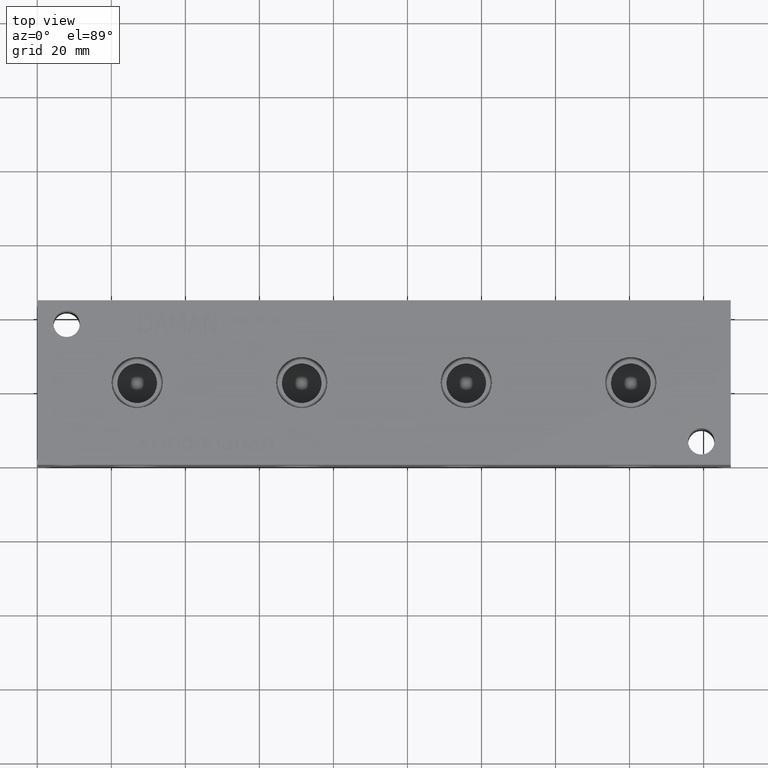
[diagram: clean part render]
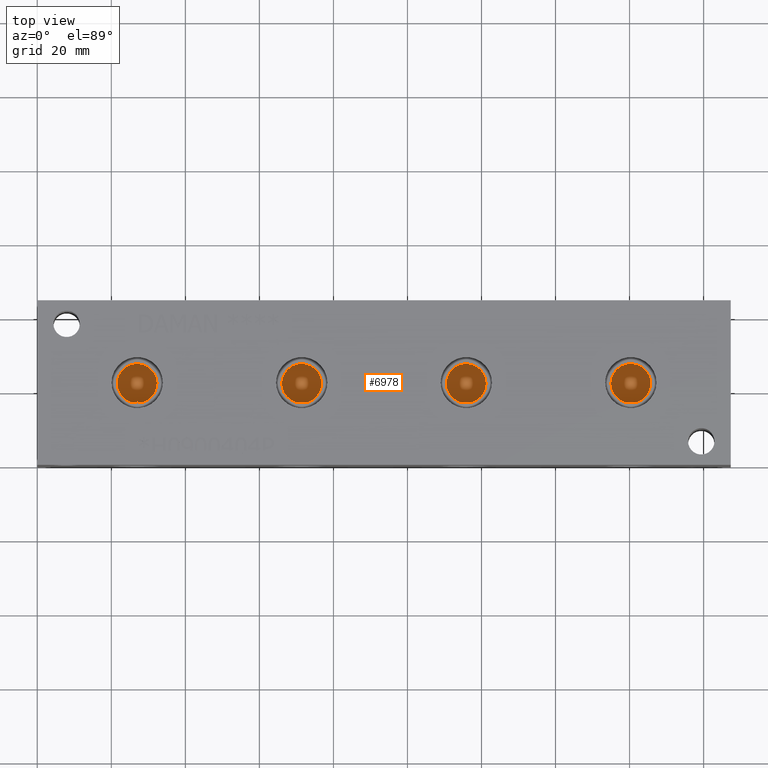
[diagram: same view with one face highlighted and labeled with its STEP entity id]
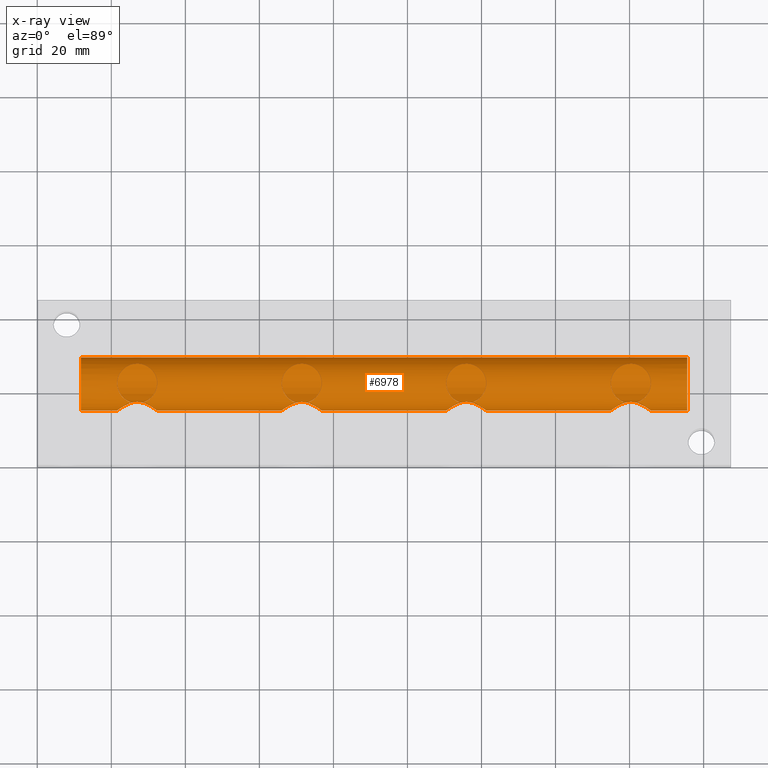
[diagram: x-ray of the same camera — body ghosted, the highlighted face saturated]
A machine part, top view. The second image highlights one B-rep face of the part: STEP entity #6978.
The next image is the same camera in x-ray: the body ghosted, the highlighted face saturated — about 1% of this face is hidden behind the body in this view.
In plain terms, the highlighted cylindrical surface (bore or boss wall) has radius 7.1501 mm, axis along (-1, 0, 0).
Its self-contained STEP definition (entity closure, byte-faithful):
#34=CYLINDRICAL_SURFACE('',#7292,7.1501);
#85=CIRCLE('',#7293,7.1501);
#86=CIRCLE('',#7294,7.1501);
#726=FACE_OUTER_BOUND('',#1113,.T.);
#1113=EDGE_LOOP('',(#6080,#6081,#6082,#6083,#6084,#6085,#6086,#6087,#6088,
#6089,#6090,#6091,#6092,#6093,#6094,#6095,#6096,#6097,#6098,#6099,#6100,
#6101,#6102,#6103,#6104,#6105,#6106,#6107,#6108,#6109,#6110,#6111,#6112,
#6113,#6114,#6115));
#1830=LINE('',#11775,#2529);
#1831=LINE('',#11776,#2530);
#1832=LINE('',#11777,#2531);
#1833=LINE('',#11778,#2532);
#1834=LINE('',#11780,#2533);
#2529=VECTOR('',#8573,7.1501);
#2530=VECTOR('',#8574,7.1501);
#2531=VECTOR('',#8575,7.1501);
#2532=VECTOR('',#8576,7.1501);
#2533=VECTOR('',#8577,7.1501);
#2726=B_SPLINE_CURVE_WITH_KNOTS('',3,(#11541,#11542,#11543,#11544,#11545,
#11546,#11547,#11548,#11549,#11550),.UNSPECIFIED.,.F.,.F.,(4,2,2,2,4),(0.181678559742677,
0.215897214384859,0.431794428769718,0.643166291581829,0.85453815439394),
 .UNSPECIFIED.);
#2727=B_SPLINE_CURVE_WITH_KNOTS('',3,(#11554,#11555,#11556,#11557,#11558,
#11559,#11560,#11561,#11562,#11563),.UNSPECIFIED.,.F.,.F.,(4,2,2,2,4),(2.56361446318182,
2.77498632599393,2.98635818880604,3.2022554031909,3.23647405783307),
 .UNSPECIFIED.);
#2728=B_SPLINE_CURVE_WITH_KNOTS('',3,(#11564,#11565,#11566,#11567,#11568,
#11569,#11570,#11571,#11572,#11573,#11574,#11575,#11576,#11577,#11578,#11579,
#11580,#11581,#11582,#11583,#11584,#11585),.UNSPECIFIED.,.F.,.F.,(4,2,2,
2,2,2,2,2,2,2,4),(0.85453815439394,1.06591001720605,1.27728188001816,1.49317909440302,
1.60112770159545,1.70907630878788,1.81702491598031,1.92497352317274,2.1408707375576,
2.35224260036971,2.56361446318182),.UNSPECIFIED.);
#2729=B_SPLINE_CURVE_WITH_KNOTS('',3,(#11603,#11604,#11605,#11606,#11607,
#11608,#11609,#11610,#11611,#11612),.UNSPECIFIED.,.F.,.F.,(4,2,2,2,4),(0.181678559742681,
0.215897214384859,0.431794428769717,0.643166291581829,0.85453815439394),
 .UNSPECIFIED.);
#2730=B_SPLINE_CURVE_WITH_KNOTS('',3,(#11616,#11617,#11618,#11619,#11620,
#11621,#11622,#11623,#11624,#11625),.UNSPECIFIED.,.F.,.F.,(4,2,2,2,4),(2.56361446318182,
2.77498632599393,2.98635818880604,3.2022554031909,3.23647405783308),
 .UNSPECIFIED.);
#2731=B_SPLINE_CURVE_WITH_KNOTS('',3,(#11626,#11627,#11628,#11629,#11630,
#11631,#11632,#11633,#11634,#11635,#11636,#11637,#11638,#11639,#11640,#11641,
#11642,#11643,#11644,#11645,#11646,#11647),.UNSPECIFIED.,.F.,.F.,(4,2,2,
2,2,2,2,2,2,2,4),(0.85453815439394,1.06591001720605,1.27728188001816,1.49317909440302,
1.60112770159545,1.70907630878788,1.81702491598031,1.92497352317274,2.1408707375576,
2.35224260036971,2.56361446318182),.UNSPECIFIED.);
#2732=B_SPLINE_CURVE_WITH_KNOTS('',3,(#11665,#11666,#11667,#11668,#11669,
#11670,#11671,#11672,#11673,#11674),.UNSPECIFIED.,.F.,.F.,(4,2,2,2,4),(0.181678559742683,
0.215897214384859,0.431794428769717,0.643166291581829,0.85453815439394),
 .UNSPECIFIED.);
#2733=B_SPLINE_CURVE_WITH_KNOTS('',3,(#11678,#11679,#11680,#11681,#11682,
#11683,#11684,#11685,#11686,#11687),.UNSPECIFIED.,.F.,.F.,(4,2,2,2,4),(2.56361446318182,
2.77498632599393,2.98635818880604,3.2022554031909,3.23647405783308),
 .UNSPECIFIED.);
#2734=B_SPLINE_CURVE_WITH_KNOTS('',3,(#11688,#11689,#11690,#11691,#11692,
#11693,#11694,#11695,#11696,#11697,#11698,#11699,#11700,#11701,#11702,#11703,
#11704,#11705,#11706,#11707,#11708,#11709),.UNSPECIFIED.,.F.,.F.,(4,2,2,
2,2,2,2,2,2,2,4),(0.85453815439394,1.06591001720605,1.27728188001816,1.49317909440302,
1.60112770159545,1.70907630878788,1.81702491598031,1.92497352317274,2.1408707375576,
2.35224260036971,2.56361446318182),.UNSPECIFIED.);
#2735=B_SPLINE_CURVE_WITH_KNOTS('',3,(#11727,#11728,#11729,#11730,#11731,
#11732,#11733,#11734,#11735,#11736),.UNSPECIFIED.,.F.,.F.,(4,2,2,2,4),(0.181678559742687,
0.215897214384858,0.431794428769717,0.643166291581828,0.854538154393939),
 .UNSPECIFIED.);
#2736=B_SPLINE_CURVE_WITH_KNOTS('',3,(#11740,#11741,#11742,#11743,#11744,
#11745,#11746,#11747,#11748,#11749),.UNSPECIFIED.,.F.,.F.,(4,2,2,2,4),(2.56361446318182,
2.77498632599393,2.98635818880604,3.2022554031909,3.23647405783308),
 .UNSPECIFIED.);
#2737=B_SPLINE_CURVE_WITH_KNOTS('',3,(#11750,#11751,#11752,#11753,#11754,
#11755,#11756,#11757,#11758,#11759,#11760,#11761,#11762,#11763,#11764,#11765,
#11766,#11767,#11768,#11769,#11770,#11771),.UNSPECIFIED.,.F.,.F.,(4,2,2,
2,2,2,2,2,2,2,4),(0.854538154393939,1.06591001720605,1.27728188001816,1.49317909440302,
1.60112770159545,1.70907630878788,1.81702491598031,1.92497352317274,2.1408707375576,
2.35224260036971,2.56361446318182),.UNSPECIFIED.);
#2738=B_SPLINE_CURVE_WITH_KNOTS('',3,(#11783,#11784,#11785,#11786,#11787,
#11788,#11789,#11790,#11791,#11792,#11793,#11794,#11795,#11796,#11797,#11798,
#11799,#11800,#11801,#11802),.UNSPECIFIED.,.F.,.F.,(4,2,2,2,2,2,2,2,2,4),
(1.89075486854655,1.92497352317274,2.1408707375576,2.35224260036971,2.56361446318182,
2.77498632599393,2.98635818880604,3.2022554031909,3.31020401038333,3.41815261757576),
 .UNSPECIFIED.);
#2739=B_SPLINE_CURVE_WITH_KNOTS('',3,(#11804,#11805,#11806,#11807,#11808,
#11809,#11810,#11811,#11812,#11813,#11814,#11815),.UNSPECIFIED.,.F.,.F.,
(4,2,2,2,2,4),(0.,0.107948607192429,0.215897214384858,0.431794428769717,
0.643166291581828,0.854538154393939),.UNSPECIFIED.);
#2740=B_SPLINE_CURVE_WITH_KNOTS('',3,(#11816,#11817,#11818,#11819,#11820,
#11821,#11822,#11823,#11824,#11825),.UNSPECIFIED.,.F.,.F.,(4,2,2,2,4),(0.854538154393939,
1.06591001720605,1.27728188001816,1.49317909440302,1.5273977490292),
 .UNSPECIFIED.);
#2741=B_SPLINE_CURVE_WITH_KNOTS('',3,(#11827,#11828,#11829,#11830,#11831,
#11832,#11833,#11834,#11835,#11836,#11837,#11838,#11839,#11840,#11841,#11842,
#11843,#11844,#11845,#11846),.UNSPECIFIED.,.F.,.F.,(4,2,2,2,2,2,2,2,2,4),
(1.89075486854656,1.92497352317274,2.1408707375576,2.35224260036971,2.56361446318182,
2.77498632599393,2.98635818880604,3.2022554031909,3.31020401038333,3.41815261757576),
 .UNSPECIFIED.);
#2742=B_SPLINE_CURVE_WITH_KNOTS('',3,(#11848,#11849,#11850,#11851,#11852,
#11853,#11854,#11855,#11856,#11857,#11858,#11859),.UNSPECIFIED.,.F.,.F.,
(4,2,2,2,2,4),(0.,0.10794860719243,0.215897214384859,0.431794428769718,
0.643166291581829,0.85453815439394),.UNSPECIFIED.);
#2743=B_SPLINE_CURVE_WITH_KNOTS('',3,(#11860,#11861,#11862,#11863,#11864,
#11865,#11866,#11867,#11868,#11869),.UNSPECIFIED.,.F.,.F.,(4,2,2,2,4),(0.85453815439394,
1.06591001720605,1.27728188001816,1.49317909440302,1.52739774902921),
 .UNSPECIFIED.);
#2744=B_SPLINE_CURVE_WITH_KNOTS('',3,(#11871,#11872,#11873,#11874,#11875,
#11876,#11877,#11878,#11879,#11880,#11881,#11882,#11883,#11884,#11885,#11886,
#11887,#11888,#11889,#11890),.UNSPECIFIED.,.F.,.F.,(4,2,2,2,2,2,2,2,2,4),
(1.89075486854656,1.92497352317274,2.1408707375576,2.35224260036971,2.56361446318182,
2.77498632599393,2.98635818880604,3.2022554031909,3.31020401038333,3.41815261757576),
 .UNSPECIFIED.);
#2745=B_SPLINE_CURVE_WITH_KNOTS('',3,(#11892,#11893,#11894,#11895,#11896,
#11897,#11898,#11899,#11900,#11901,#11902,#11903),.UNSPECIFIED.,.F.,.F.,
(4,2,2,2,2,4),(0.,0.107948607192429,0.215897214384859,0.431794428769717,
0.643166291581829,0.85453815439394),.UNSPECIFIED.);
#2746=B_SPLINE_CURVE_WITH_KNOTS('',3,(#11904,#11905,#11906,#11907,#11908,
#11909,#11910,#11911,#11912,#11913),.UNSPECIFIED.,.F.,.F.,(4,2,2,2,4),(0.85453815439394,
1.06591001720605,1.27728188001816,1.49317909440302,1.5273977490292),
 .UNSPECIFIED.);
#2747=B_SPLINE_CURVE_WITH_KNOTS('',3,(#11915,#11916,#11917,#11918,#11919,
#11920,#11921,#11922,#11923,#11924,#11925,#11926,#11927,#11928,#11929,#11930,
#11931,#11932,#11933,#11934),.UNSPECIFIED.,.F.,.F.,(4,2,2,2,2,2,2,2,2,4),
(1.89075486854656,1.92497352317274,2.1408707375576,2.35224260036971,2.56361446318182,
2.77498632599393,2.98635818880604,3.2022554031909,3.31020401038333,3.41815261757576),
 .UNSPECIFIED.);
#2748=B_SPLINE_CURVE_WITH_KNOTS('',3,(#11936,#11937,#11938,#11939,#11940,
#11941,#11942,#11943,#11944,#11945,#11946,#11947),.UNSPECIFIED.,.F.,.F.,
(4,2,2,2,2,4),(0.,0.107948607192429,0.215897214384859,0.431794428769717,
0.643166291581829,0.85453815439394),.UNSPECIFIED.);
#2749=B_SPLINE_CURVE_WITH_KNOTS('',3,(#11948,#11949,#11950,#11951,#11952,
#11953,#11954,#11955,#11956,#11957),.UNSPECIFIED.,.F.,.F.,(4,2,2,2,4),(0.85453815439394,
1.06591001720605,1.27728188001816,1.49317909440302,1.5273977490292),
 .UNSPECIFIED.);
#3319=VERTEX_POINT('',#11538);
#3320=VERTEX_POINT('',#11540);
#3321=VERTEX_POINT('',#11551);
#3322=VERTEX_POINT('',#11553);
#3328=VERTEX_POINT('',#11600);
#3329=VERTEX_POINT('',#11602);
#3330=VERTEX_POINT('',#11613);
#3331=VERTEX_POINT('',#11615);
#3337=VERTEX_POINT('',#11662);
#3338=VERTEX_POINT('',#11664);
#3339=VERTEX_POINT('',#11675);
#3340=VERTEX_POINT('',#11677);
#3346=VERTEX_POINT('',#11724);
#3347=VERTEX_POINT('',#11726);
#3348=VERTEX_POINT('',#11737);
#3349=VERTEX_POINT('',#11739);
#3350=VERTEX_POINT('',#11773);
#3351=VERTEX_POINT('',#11779);
#3352=VERTEX_POINT('',#11782);
#3353=VERTEX_POINT('',#11803);
#3354=VERTEX_POINT('',#11826);
#3355=VERTEX_POINT('',#11847);
#3356=VERTEX_POINT('',#11870);
#3357=VERTEX_POINT('',#11891);
#3358=VERTEX_POINT('',#11914);
#3359=VERTEX_POINT('',#11935);
#4241=EDGE_CURVE('',#3320,#3319,#2726,.T.);
#4243=EDGE_CURVE('',#3322,#3321,#2727,.T.);
#4244=EDGE_CURVE('',#3319,#3322,#2728,.T.);
#4252=EDGE_CURVE('',#3329,#3328,#2729,.T.);
#4254=EDGE_CURVE('',#3331,#3330,#2730,.T.);
#4255=EDGE_CURVE('',#3328,#3331,#2731,.T.);
#4263=EDGE_CURVE('',#3338,#3337,#2732,.T.);
#4265=EDGE_CURVE('',#3340,#3339,#2733,.T.);
#4266=EDGE_CURVE('',#3337,#3340,#2734,.T.);
#4274=EDGE_CURVE('',#3347,#3346,#2735,.T.);
#4276=EDGE_CURVE('',#3349,#3348,#2736,.T.);
#4277=EDGE_CURVE('',#3346,#3349,#2737,.T.);
#4278=EDGE_CURVE('',#3350,#3350,#85,.T.);
#4279=EDGE_CURVE('',#3350,#3328,#1830,.T.);
#4280=EDGE_CURVE('',#3331,#3337,#1831,.T.);
#4281=EDGE_CURVE('',#3340,#3319,#1832,.T.);
#4282=EDGE_CURVE('',#3322,#3346,#1833,.T.);
#4283=EDGE_CURVE('',#3349,#3351,#1834,.T.);
#4284=EDGE_CURVE('',#3351,#3351,#86,.T.);
#4285=EDGE_CURVE('',#3348,#3352,#2738,.T.);
#4286=EDGE_CURVE('',#3352,#3353,#2739,.T.);
#4287=EDGE_CURVE('',#3353,#3347,#2740,.T.);
#4288=EDGE_CURVE('',#3321,#3354,#2741,.T.);
#4289=EDGE_CURVE('',#3354,#3355,#2742,.T.);
#4290=EDGE_CURVE('',#3355,#3320,#2743,.T.);
#4291=EDGE_CURVE('',#3339,#3356,#2744,.T.);
#4292=EDGE_CURVE('',#3356,#3357,#2745,.T.);
#4293=EDGE_CURVE('',#3357,#3338,#2746,.T.);
#4294=EDGE_CURVE('',#3330,#3358,#2747,.T.);
#4295=EDGE_CURVE('',#3358,#3359,#2748,.T.);
#4296=EDGE_CURVE('',#3359,#3329,#2749,.T.);
#6080=ORIENTED_EDGE('',*,*,#4278,.T.);
#6081=ORIENTED_EDGE('',*,*,#4279,.T.);
#6082=ORIENTED_EDGE('',*,*,#4255,.T.);
#6083=ORIENTED_EDGE('',*,*,#4280,.T.);
#6084=ORIENTED_EDGE('',*,*,#4266,.T.);
#6085=ORIENTED_EDGE('',*,*,#4281,.T.);
#6086=ORIENTED_EDGE('',*,*,#4244,.T.);
#6087=ORIENTED_EDGE('',*,*,#4282,.T.);
#6088=ORIENTED_EDGE('',*,*,#4277,.T.);
#6089=ORIENTED_EDGE('',*,*,#4283,.T.);
#6090=ORIENTED_EDGE('',*,*,#4284,.T.);
#6091=ORIENTED_EDGE('',*,*,#4283,.F.);
#6092=ORIENTED_EDGE('',*,*,#4276,.T.);
#6093=ORIENTED_EDGE('',*,*,#4285,.T.);
#6094=ORIENTED_EDGE('',*,*,#4286,.T.);
#6095=ORIENTED_EDGE('',*,*,#4287,.T.);
#6096=ORIENTED_EDGE('',*,*,#4274,.T.);
#6097=ORIENTED_EDGE('',*,*,#4282,.F.);
#6098=ORIENTED_EDGE('',*,*,#4243,.T.);
#6099=ORIENTED_EDGE('',*,*,#4288,.T.);
#6100=ORIENTED_EDGE('',*,*,#4289,.T.);
#6101=ORIENTED_EDGE('',*,*,#4290,.T.);
#6102=ORIENTED_EDGE('',*,*,#4241,.T.);
#6103=ORIENTED_EDGE('',*,*,#4281,.F.);
#6104=ORIENTED_EDGE('',*,*,#4265,.T.);
#6105=ORIENTED_EDGE('',*,*,#4291,.T.);
#6106=ORIENTED_EDGE('',*,*,#4292,.T.);
#6107=ORIENTED_EDGE('',*,*,#4293,.T.);
#6108=ORIENTED_EDGE('',*,*,#4263,.T.);
#6109=ORIENTED_EDGE('',*,*,#4280,.F.);
#6110=ORIENTED_EDGE('',*,*,#4254,.T.);
#6111=ORIENTED_EDGE('',*,*,#4294,.T.);
#6112=ORIENTED_EDGE('',*,*,#4295,.T.);
#6113=ORIENTED_EDGE('',*,*,#4296,.T.);
#6114=ORIENTED_EDGE('',*,*,#4252,.T.);
#6115=ORIENTED_EDGE('',*,*,#4279,.F.);
#6978=ADVANCED_FACE('',(#726),#34,.F.);
#7292=AXIS2_PLACEMENT_3D('',#11772,#8569,#8570);
#7293=AXIS2_PLACEMENT_3D('',#11774,#8571,#8572);
#7294=AXIS2_PLACEMENT_3D('',#11781,#8578,#8579);
#8569=DIRECTION('center_axis',(-1.,0.,0.));
#8570=DIRECTION('ref_axis',(0.,1.,0.));
#8571=DIRECTION('center_axis',(-1.,0.,0.));
#8572=DIRECTION('ref_axis',(0.,1.,0.));
#8573=DIRECTION('',(1.,0.,0.));
#8574=DIRECTION('',(1.,0.,0.));
#8575=DIRECTION('',(1.,0.,0.));
#8576=DIRECTION('',(1.,0.,0.));
#8577=DIRECTION('',(1.,0.,0.));
#8578=DIRECTION('center_axis',(1.,0.,0.));
#8579=DIRECTION('ref_axis',(0.,1.,0.));
#11538=CARTESIAN_POINT('',(110.5154,15.0749,22.225));
#11540=CARTESIAN_POINT('',(114.096822678382,17.1691158039702,27.2808841961765));
#11541=CARTESIAN_POINT('Ctrl Pts',(114.096822678489,17.1691158037583,27.2808841960822));
#11542=CARTESIAN_POINT('Ctrl Pts',(113.990548876089,17.1317430311227,27.2435114234454));
#11543=CARTESIAN_POINT('Ctrl Pts',(113.885772042364,17.0919586524659,27.2028972767878));
#11544=CARTESIAN_POINT('Ctrl Pts',(113.132613385344,16.787466807635,26.8835641592128));
#11545=CARTESIAN_POINT('Ctrl Pts',(112.550575300865,16.4527192015832,26.480111467047));
#11546=CARTESIAN_POINT('Ctrl Pts',(111.629444540948,15.8769865621184,25.5589807071302));
#11547=CARTESIAN_POINT('Ctrl Pts',(111.220151146014,15.58954552631,24.9757841997679));
#11548=CARTESIAN_POINT('Ctrl Pts',(110.662483250039,15.187120687467,23.6617763323954));
#11549=CARTESIAN_POINT('Ctrl Pts',(110.5154,15.0749,22.9295728760404));
#11550=CARTESIAN_POINT('Ctrl Pts',(110.5154,15.0749,22.225));
#11551=CARTESIAN_POINT('',(117.652777321618,17.1691158039702,27.2808841961765));
#11553=CARTESIAN_POINT('',(121.2342,15.0749,22.225));
#11554=CARTESIAN_POINT('Ctrl Pts',(121.2342,15.0749,22.225));
#11555=CARTESIAN_POINT('Ctrl Pts',(121.2342,15.0749,22.9295728760404));
#11556=CARTESIAN_POINT('Ctrl Pts',(121.087116749961,15.187120687467,23.6617763323954));
#11557=CARTESIAN_POINT('Ctrl Pts',(120.529448853986,15.58954552631,24.9757841997679));
#11558=CARTESIAN_POINT('Ctrl Pts',(120.120155459052,15.8769865621184,25.5589807071302));
#11559=CARTESIAN_POINT('Ctrl Pts',(119.199024699135,16.4527192015832,26.480111467047));
#11560=CARTESIAN_POINT('Ctrl Pts',(118.616986614656,16.787466807635,26.8835641592128));
#11561=CARTESIAN_POINT('Ctrl Pts',(117.863827957636,17.0919586524659,27.2028972767878));
#11562=CARTESIAN_POINT('Ctrl Pts',(117.759051123911,17.1317430311227,27.2435114234454));
#11563=CARTESIAN_POINT('Ctrl Pts',(117.652777321511,17.1691158037583,27.2808841960822));
#11564=CARTESIAN_POINT('Ctrl Pts',(110.5154,15.0749,22.225));
#11565=CARTESIAN_POINT('Ctrl Pts',(110.5154,15.0749,21.5204271239596));
#11566=CARTESIAN_POINT('Ctrl Pts',(110.662483250039,15.187120687467,20.7882236676046));
#11567=CARTESIAN_POINT('Ctrl Pts',(111.220151146014,15.58954552631,19.4742158002321));
#11568=CARTESIAN_POINT('Ctrl Pts',(111.629444540948,15.8769865621184,18.8910192928698));
#11569=CARTESIAN_POINT('Ctrl Pts',(112.550575300865,16.4527192015832,17.969888532953));
#11570=CARTESIAN_POINT('Ctrl Pts',(113.132613385344,16.787466807635,17.5664358407872));
#11571=CARTESIAN_POINT('Ctrl Pts',(114.10779055027,17.181717728364,17.1529686896616));
#11572=CARTESIAN_POINT('Ctrl Pts',(114.450279854159,17.2942460088443,17.0459262105219));
#11573=CARTESIAN_POINT('Ctrl Pts',(115.15378597579,17.4497577272549,16.9021998345525));
#11574=CARTESIAN_POINT('Ctrl Pts',(115.514971309359,17.492055710237,16.8656));
#11575=CARTESIAN_POINT('Ctrl Pts',(116.234628690641,17.492055710237,16.8656));
#11576=CARTESIAN_POINT('Ctrl Pts',(116.59581402421,17.4497577272549,16.9021998345525));
#11577=CARTESIAN_POINT('Ctrl Pts',(117.299320145841,17.2942460088443,17.0459262105219));
#11578=CARTESIAN_POINT('Ctrl Pts',(117.64180944973,17.1817177283641,17.1529686896616));
#11579=CARTESIAN_POINT('Ctrl Pts',(118.616986614656,16.787466807635,17.5664358407872));
#11580=CARTESIAN_POINT('Ctrl Pts',(119.199024699135,16.4527192015832,17.969888532953));
#11581=CARTESIAN_POINT('Ctrl Pts',(120.120155459052,15.8769865621184,18.8910192928698));
#11582=CARTESIAN_POINT('Ctrl Pts',(120.529448853986,15.58954552631,19.4742158002321));
#11583=CARTESIAN_POINT('Ctrl Pts',(121.087116749961,15.187120687467,20.7882236676046));
#11584=CARTESIAN_POINT('Ctrl Pts',(121.2342,15.0749,21.5204271239596));
#11585=CARTESIAN_POINT('Ctrl Pts',(121.2342,15.0749,22.225));
#11600=CARTESIAN_POINT('',(21.6154,15.0749,22.225));
#11602=CARTESIAN_POINT('',(25.1968226783816,17.1691158039702,27.2808841961765));
#11603=CARTESIAN_POINT('Ctrl Pts',(25.1968226784893,17.1691158037583,27.2808841960822));
#11604=CARTESIAN_POINT('Ctrl Pts',(25.0905488760891,17.1317430311227,27.2435114234454));
#11605=CARTESIAN_POINT('Ctrl Pts',(24.985772042364,17.0919586524659,27.2028972767878));
#11606=CARTESIAN_POINT('Ctrl Pts',(24.2326133853438,16.787466807635,26.8835641592128));
#11607=CARTESIAN_POINT('Ctrl Pts',(23.6505753008647,16.4527192015832,26.480111467047));
#11608=CARTESIAN_POINT('Ctrl Pts',(22.7294445409478,15.8769865621184,25.5589807071302));
#11609=CARTESIAN_POINT('Ctrl Pts',(22.320151146014,15.58954552631,24.9757841997679));
#11610=CARTESIAN_POINT('Ctrl Pts',(21.7624832500391,15.187120687467,23.6617763323954));
#11611=CARTESIAN_POINT('Ctrl Pts',(21.6154,15.0749,22.9295728760404));
#11612=CARTESIAN_POINT('Ctrl Pts',(21.6154,15.0749,22.225));
#11613=CARTESIAN_POINT('',(28.7527773216184,17.1691158039702,27.2808841961765));
#11615=CARTESIAN_POINT('',(32.3342,15.0749,22.225));
#11616=CARTESIAN_POINT('Ctrl Pts',(32.3342,15.0749,22.225));
#11617=CARTESIAN_POINT('Ctrl Pts',(32.3342,15.0749,22.9295728760404));
#11618=CARTESIAN_POINT('Ctrl Pts',(32.1871167499609,15.187120687467,23.6617763323954));
#11619=CARTESIAN_POINT('Ctrl Pts',(31.629448853986,15.58954552631,24.9757841997679));
#11620=CARTESIAN_POINT('Ctrl Pts',(31.2201554590522,15.8769865621184,25.5589807071302));
#11621=CARTESIAN_POINT('Ctrl Pts',(30.2990246991353,16.4527192015832,26.480111467047));
#11622=CARTESIAN_POINT('Ctrl Pts',(29.7169866146562,16.787466807635,26.8835641592128));
#11623=CARTESIAN_POINT('Ctrl Pts',(28.963827957636,17.0919586524659,27.2028972767878));
#11624=CARTESIAN_POINT('Ctrl Pts',(28.8590511239109,17.1317430311227,27.2435114234454));
#11625=CARTESIAN_POINT('Ctrl Pts',(28.7527773215107,17.1691158037583,27.2808841960822));
#11626=CARTESIAN_POINT('Ctrl Pts',(21.6154,15.0749,22.225));
#11627=CARTESIAN_POINT('Ctrl Pts',(21.6154,15.0749,21.5204271239596));
#11628=CARTESIAN_POINT('Ctrl Pts',(21.7624832500391,15.187120687467,20.7882236676046));
#11629=CARTESIAN_POINT('Ctrl Pts',(22.320151146014,15.58954552631,19.4742158002321));
#11630=CARTESIAN_POINT('Ctrl Pts',(22.7294445409478,15.8769865621184,18.8910192928698));
#11631=CARTESIAN_POINT('Ctrl Pts',(23.6505753008647,16.4527192015832,17.969888532953));
#11632=CARTESIAN_POINT('Ctrl Pts',(24.2326133853438,16.787466807635,17.5664358407872));
#11633=CARTESIAN_POINT('Ctrl Pts',(25.2077905502697,17.1817177283641,17.1529686896616));
#11634=CARTESIAN_POINT('Ctrl Pts',(25.5502798541588,17.2942460088443,17.0459262105219));
#11635=CARTESIAN_POINT('Ctrl Pts',(26.2537859757902,17.4497577272549,16.9021998345525));
#11636=CARTESIAN_POINT('Ctrl Pts',(26.6149713093586,17.492055710237,16.8656));
#11637=CARTESIAN_POINT('Ctrl Pts',(27.3346286906414,17.492055710237,16.8656));
#11638=CARTESIAN_POINT('Ctrl Pts',(27.6958140242098,17.4497577272549,16.9021998345525));
#11639=CARTESIAN_POINT('Ctrl Pts',(28.3993201458412,17.2942460088443,17.0459262105219));
#11640=CARTESIAN_POINT('Ctrl Pts',(28.7418094497303,17.1817177283641,17.1529686896616));
#11641=CARTESIAN_POINT('Ctrl Pts',(29.7169866146562,16.787466807635,17.5664358407872));
#11642=CARTESIAN_POINT('Ctrl Pts',(30.2990246991353,16.4527192015832,17.969888532953));
#11643=CARTESIAN_POINT('Ctrl Pts',(31.2201554590522,15.8769865621184,18.8910192928698));
#11644=CARTESIAN_POINT('Ctrl Pts',(31.629448853986,15.58954552631,19.4742158002321));
#11645=CARTESIAN_POINT('Ctrl Pts',(32.1871167499609,15.187120687467,20.7882236676046));
#11646=CARTESIAN_POINT('Ctrl Pts',(32.3342,15.0749,21.5204271239596));
#11647=CARTESIAN_POINT('Ctrl Pts',(32.3342,15.0749,22.225));
#11662=CARTESIAN_POINT('',(66.0654,15.0749,22.225));
#11664=CARTESIAN_POINT('',(69.6468226783816,17.1691158039702,27.2808841961765));
#11665=CARTESIAN_POINT('Ctrl Pts',(69.6468226784893,17.1691158037583,27.2808841960822));
#11666=CARTESIAN_POINT('Ctrl Pts',(69.5405488760891,17.1317430311227,27.2435114234454));
#11667=CARTESIAN_POINT('Ctrl Pts',(69.435772042364,17.0919586524659,27.2028972767878));
#11668=CARTESIAN_POINT('Ctrl Pts',(68.6826133853438,16.787466807635,26.8835641592128));
#11669=CARTESIAN_POINT('Ctrl Pts',(68.1005753008647,16.4527192015832,26.480111467047));
#11670=CARTESIAN_POINT('Ctrl Pts',(67.1794445409478,15.8769865621184,25.5589807071302));
#11671=CARTESIAN_POINT('Ctrl Pts',(66.770151146014,15.58954552631,24.9757841997679));
#11672=CARTESIAN_POINT('Ctrl Pts',(66.2124832500391,15.187120687467,23.6617763323954));
#11673=CARTESIAN_POINT('Ctrl Pts',(66.0654,15.0749,22.9295728760404));
#11674=CARTESIAN_POINT('Ctrl Pts',(66.0654,15.0749,22.225));
#11675=CARTESIAN_POINT('',(73.2027773216184,17.1691158039702,27.2808841961765));
#11677=CARTESIAN_POINT('',(76.7842,15.0749,22.225));
#11678=CARTESIAN_POINT('Ctrl Pts',(76.7842,15.0749,22.225));
#11679=CARTESIAN_POINT('Ctrl Pts',(76.7842,15.0749,22.9295728760404));
#11680=CARTESIAN_POINT('Ctrl Pts',(76.637116749961,15.187120687467,23.6617763323954));
#11681=CARTESIAN_POINT('Ctrl Pts',(76.079448853986,15.58954552631,24.9757841997679));
#11682=CARTESIAN_POINT('Ctrl Pts',(75.6701554590522,15.8769865621184,25.5589807071302));
#11683=CARTESIAN_POINT('Ctrl Pts',(74.7490246991353,16.4527192015832,26.480111467047));
#11684=CARTESIAN_POINT('Ctrl Pts',(74.1669866146563,16.787466807635,26.8835641592128));
#11685=CARTESIAN_POINT('Ctrl Pts',(73.413827957636,17.0919586524659,27.2028972767878));
#11686=CARTESIAN_POINT('Ctrl Pts',(73.3090511239109,17.1317430311227,27.2435114234454));
#11687=CARTESIAN_POINT('Ctrl Pts',(73.2027773215107,17.1691158037583,27.2808841960822));
#11688=CARTESIAN_POINT('Ctrl Pts',(66.0654,15.0749,22.225));
#11689=CARTESIAN_POINT('Ctrl Pts',(66.0654,15.0749,21.5204271239596));
#11690=CARTESIAN_POINT('Ctrl Pts',(66.2124832500391,15.187120687467,20.7882236676046));
#11691=CARTESIAN_POINT('Ctrl Pts',(66.770151146014,15.58954552631,19.4742158002321));
#11692=CARTESIAN_POINT('Ctrl Pts',(67.1794445409478,15.8769865621184,18.8910192928698));
#11693=CARTESIAN_POINT('Ctrl Pts',(68.1005753008647,16.4527192015832,17.969888532953));
#11694=CARTESIAN_POINT('Ctrl Pts',(68.6826133853438,16.787466807635,17.5664358407872));
#11695=CARTESIAN_POINT('Ctrl Pts',(69.6577905502697,17.1817177283641,17.1529686896616));
#11696=CARTESIAN_POINT('Ctrl Pts',(70.0002798541588,17.2942460088443,17.0459262105219));
#11697=CARTESIAN_POINT('Ctrl Pts',(70.7037859757903,17.4497577272549,16.9021998345525));
#11698=CARTESIAN_POINT('Ctrl Pts',(71.0649713093586,17.492055710237,16.8656));
#11699=CARTESIAN_POINT('Ctrl Pts',(71.7846286906414,17.492055710237,16.8656));
#11700=CARTESIAN_POINT('Ctrl Pts',(72.1458140242098,17.4497577272549,16.9021998345525));
#11701=CARTESIAN_POINT('Ctrl Pts',(72.8493201458412,17.2942460088443,17.0459262105219));
#11702=CARTESIAN_POINT('Ctrl Pts',(73.1918094497303,17.1817177283641,17.1529686896616));
#11703=CARTESIAN_POINT('Ctrl Pts',(74.1669866146563,16.787466807635,17.5664358407872));
#11704=CARTESIAN_POINT('Ctrl Pts',(74.7490246991353,16.4527192015832,17.969888532953));
#11705=CARTESIAN_POINT('Ctrl Pts',(75.6701554590522,15.8769865621184,18.8910192928698));
#11706=CARTESIAN_POINT('Ctrl Pts',(76.079448853986,15.58954552631,19.4742158002321));
#11707=CARTESIAN_POINT('Ctrl Pts',(76.6371167499609,15.187120687467,20.7882236676046));
#11708=CARTESIAN_POINT('Ctrl Pts',(76.7842,15.0749,21.5204271239596));
#11709=CARTESIAN_POINT('Ctrl Pts',(76.7842,15.0749,22.225));
#11724=CARTESIAN_POINT('',(154.9654,15.0749,22.225));
#11726=CARTESIAN_POINT('',(158.546822678382,17.1691158039702,27.2808841961765));
#11727=CARTESIAN_POINT('Ctrl Pts',(158.546822678489,17.1691158037583,27.2808841960822));
#11728=CARTESIAN_POINT('Ctrl Pts',(158.440548876089,17.1317430311227,27.2435114234454));
#11729=CARTESIAN_POINT('Ctrl Pts',(158.335772042364,17.0919586524659,27.2028972767878));
#11730=CARTESIAN_POINT('Ctrl Pts',(157.582613385344,16.787466807635,26.8835641592128));
#11731=CARTESIAN_POINT('Ctrl Pts',(157.000575300865,16.4527192015832,26.480111467047));
#11732=CARTESIAN_POINT('Ctrl Pts',(156.079444540948,15.8769865621184,25.5589807071302));
#11733=CARTESIAN_POINT('Ctrl Pts',(155.670151146014,15.58954552631,24.9757841997679));
#11734=CARTESIAN_POINT('Ctrl Pts',(155.112483250039,15.187120687467,23.6617763323954));
#11735=CARTESIAN_POINT('Ctrl Pts',(154.9654,15.0749,22.9295728760404));
#11736=CARTESIAN_POINT('Ctrl Pts',(154.9654,15.0749,22.225));
#11737=CARTESIAN_POINT('',(162.102777321618,17.1691158039702,27.2808841961765));
#11739=CARTESIAN_POINT('',(165.6842,15.0749,22.225));
#11740=CARTESIAN_POINT('Ctrl Pts',(165.6842,15.0749,22.225));
#11741=CARTESIAN_POINT('Ctrl Pts',(165.6842,15.0749,22.9295728760404));
#11742=CARTESIAN_POINT('Ctrl Pts',(165.537116749961,15.187120687467,23.6617763323954));
#11743=CARTESIAN_POINT('Ctrl Pts',(164.979448853986,15.58954552631,24.9757841997679));
#11744=CARTESIAN_POINT('Ctrl Pts',(164.570155459052,15.8769865621184,25.5589807071302));
#11745=CARTESIAN_POINT('Ctrl Pts',(163.649024699135,16.4527192015832,26.480111467047));
#11746=CARTESIAN_POINT('Ctrl Pts',(163.066986614656,16.787466807635,26.8835641592128));
#11747=CARTESIAN_POINT('Ctrl Pts',(162.313827957636,17.0919586524659,27.2028972767878));
#11748=CARTESIAN_POINT('Ctrl Pts',(162.209051123911,17.1317430311227,27.2435114234454));
#11749=CARTESIAN_POINT('Ctrl Pts',(162.102777321511,17.1691158037583,27.2808841960822));
#11750=CARTESIAN_POINT('Ctrl Pts',(154.9654,15.0749,22.225));
#11751=CARTESIAN_POINT('Ctrl Pts',(154.9654,15.0749,21.5204271239596));
#11752=CARTESIAN_POINT('Ctrl Pts',(155.112483250039,15.187120687467,20.7882236676046));
#11753=CARTESIAN_POINT('Ctrl Pts',(155.670151146014,15.58954552631,19.4742158002321));
#11754=CARTESIAN_POINT('Ctrl Pts',(156.079444540948,15.8769865621184,18.8910192928698));
#11755=CARTESIAN_POINT('Ctrl Pts',(157.000575300865,16.4527192015832,17.969888532953));
#11756=CARTESIAN_POINT('Ctrl Pts',(157.582613385344,16.787466807635,17.5664358407872));
#11757=CARTESIAN_POINT('Ctrl Pts',(158.55779055027,17.1817177283641,17.1529686896616));
#11758=CARTESIAN_POINT('Ctrl Pts',(158.900279854159,17.2942460088443,17.0459262105219));
#11759=CARTESIAN_POINT('Ctrl Pts',(159.60378597579,17.4497577272549,16.9021998345525));
#11760=CARTESIAN_POINT('Ctrl Pts',(159.964971309359,17.492055710237,16.8656));
#11761=CARTESIAN_POINT('Ctrl Pts',(160.684628690641,17.492055710237,16.8656));
#11762=CARTESIAN_POINT('Ctrl Pts',(161.04581402421,17.4497577272548,16.9021998345525));
#11763=CARTESIAN_POINT('Ctrl Pts',(161.749320145841,17.2942460088443,17.0459262105219));
#11764=CARTESIAN_POINT('Ctrl Pts',(162.09180944973,17.181717728364,17.1529686896616));
#11765=CARTESIAN_POINT('Ctrl Pts',(163.066986614656,16.787466807635,17.5664358407872));
#11766=CARTESIAN_POINT('Ctrl Pts',(163.649024699135,16.4527192015832,17.969888532953));
#11767=CARTESIAN_POINT('Ctrl Pts',(164.570155459052,15.8769865621184,18.8910192928698));
#11768=CARTESIAN_POINT('Ctrl Pts',(164.979448853986,15.58954552631,19.4742158002321));
#11769=CARTESIAN_POINT('Ctrl Pts',(165.537116749961,15.187120687467,20.7882236676046));
#11770=CARTESIAN_POINT('Ctrl Pts',(165.6842,15.0749,21.5204271239596));
#11771=CARTESIAN_POINT('Ctrl Pts',(165.6842,15.0749,22.225));
#11772=CARTESIAN_POINT('Origin',(47.2313,22.225,22.225));
#11773=CARTESIAN_POINT('',(11.7348,15.0749,22.225));
#11774=CARTESIAN_POINT('Origin',(11.7348,22.225,22.225));
#11775=CARTESIAN_POINT('',(47.2313,15.0749,22.225));
#11776=CARTESIAN_POINT('',(47.2313,15.0749,22.225));
#11777=CARTESIAN_POINT('',(47.2313,15.0749,22.225));
#11778=CARTESIAN_POINT('',(47.2313,15.0749,22.225));
#11779=CARTESIAN_POINT('',(175.5902,15.0749,22.225));
#11780=CARTESIAN_POINT('',(47.2313,15.0749,22.225));
#11781=CARTESIAN_POINT('Origin',(175.5902,22.225,22.225));
#11782=CARTESIAN_POINT('',(160.3248,27.5844,26.957944289763));
#11783=CARTESIAN_POINT('Ctrl Pts',(162.10277732166,17.1691158039702,27.2808841962941));
#11784=CARTESIAN_POINT('Ctrl Pts',(162.209051124009,17.2064885765926,27.3182569689145));
#11785=CARTESIAN_POINT('Ctrl Pts',(162.313827957684,17.2471027232326,27.3580413475536));
#11786=CARTESIAN_POINT('Ctrl Pts',(163.066986614656,17.5664358407872,27.662533192365));
#11787=CARTESIAN_POINT('Ctrl Pts',(163.649024699135,17.969888532953,27.9972807984168));
#11788=CARTESIAN_POINT('Ctrl Pts',(164.570155459052,18.8910192928698,28.5730134378816));
#11789=CARTESIAN_POINT('Ctrl Pts',(164.979448853986,19.4742158002321,28.86045447369));
#11790=CARTESIAN_POINT('Ctrl Pts',(165.537116749961,20.7882236676046,29.262879312533));
#11791=CARTESIAN_POINT('Ctrl Pts',(165.6842,21.5204271239596,29.3751));
#11792=CARTESIAN_POINT('Ctrl Pts',(165.6842,22.9295728760404,29.3751));
#11793=CARTESIAN_POINT('Ctrl Pts',(165.537116749961,23.6617763323954,29.262879312533));
#11794=CARTESIAN_POINT('Ctrl Pts',(164.979448853986,24.9757841997679,28.86045447369));
#11795=CARTESIAN_POINT('Ctrl Pts',(164.570155459052,25.5589807071302,28.5730134378816));
#11796=CARTESIAN_POINT('Ctrl Pts',(163.649024699135,26.480111467047,27.9972807984168));
#11797=CARTESIAN_POINT('Ctrl Pts',(163.066986614656,26.8835641592128,27.662533192365));
#11798=CARTESIAN_POINT('Ctrl Pts',(162.09180944973,27.2970313103384,27.2682822716359));
#11799=CARTESIAN_POINT('Ctrl Pts',(161.749320145841,27.4040737894781,27.1557539911557));
#11800=CARTESIAN_POINT('Ctrl Pts',(161.04581402421,27.5478001654475,27.0002422727452));
#11801=CARTESIAN_POINT('Ctrl Pts',(160.684628690641,27.5844,26.957944289763));
#11802=CARTESIAN_POINT('Ctrl Pts',(160.3248,27.5844,26.957944289763));
#11803=CARTESIAN_POINT('',(154.9654,22.225,29.3751));
#11804=CARTESIAN_POINT('Ctrl Pts',(160.3248,27.5844,26.957944289763));
#11805=CARTESIAN_POINT('Ctrl Pts',(159.964971309359,27.5844,26.957944289763));
#11806=CARTESIAN_POINT('Ctrl Pts',(159.60378597579,27.5478001654475,27.0002422727452));
#11807=CARTESIAN_POINT('Ctrl Pts',(158.900279854159,27.4040737894781,27.1557539911557));
#11808=CARTESIAN_POINT('Ctrl Pts',(158.55779055027,27.2970313103384,27.2682822716359));
#11809=CARTESIAN_POINT('Ctrl Pts',(157.582613385344,26.8835641592128,27.662533192365));
#11810=CARTESIAN_POINT('Ctrl Pts',(157.000575300865,26.480111467047,27.9972807984168));
#11811=CARTESIAN_POINT('Ctrl Pts',(156.079444540948,25.5589807071302,28.5730134378816));
#11812=CARTESIAN_POINT('Ctrl Pts',(155.670151146014,24.9757841997679,28.86045447369));
#11813=CARTESIAN_POINT('Ctrl Pts',(155.112483250039,23.6617763323954,29.262879312533));
#11814=CARTESIAN_POINT('Ctrl Pts',(154.9654,22.9295728760404,29.3751));
#11815=CARTESIAN_POINT('Ctrl Pts',(154.9654,22.225,29.3751));
#11816=CARTESIAN_POINT('Ctrl Pts',(154.9654,22.225,29.3751));
#11817=CARTESIAN_POINT('Ctrl Pts',(154.9654,21.5204271239596,29.3751));
#11818=CARTESIAN_POINT('Ctrl Pts',(155.112483250039,20.7882236676046,29.262879312533));
#11819=CARTESIAN_POINT('Ctrl Pts',(155.670151146014,19.4742158002321,28.86045447369));
#11820=CARTESIAN_POINT('Ctrl Pts',(156.079444540948,18.8910192928698,28.5730134378816));
#11821=CARTESIAN_POINT('Ctrl Pts',(157.000575300865,17.969888532953,27.9972807984168));
#11822=CARTESIAN_POINT('Ctrl Pts',(157.582613385344,17.5664358407872,27.662533192365));
#11823=CARTESIAN_POINT('Ctrl Pts',(158.335772042316,17.2471027232326,27.3580413475536));
#11824=CARTESIAN_POINT('Ctrl Pts',(158.440548875991,17.2064885765926,27.3182569689145));
#11825=CARTESIAN_POINT('Ctrl Pts',(158.54682267834,17.1691158039702,27.2808841962941));
#11826=CARTESIAN_POINT('',(115.8748,27.5844,26.957944289763));
#11827=CARTESIAN_POINT('Ctrl Pts',(117.65277732166,17.1691158039702,27.2808841962941));
#11828=CARTESIAN_POINT('Ctrl Pts',(117.759051124009,17.2064885765926,27.3182569689145));
#11829=CARTESIAN_POINT('Ctrl Pts',(117.863827957684,17.2471027232326,27.3580413475535));
#11830=CARTESIAN_POINT('Ctrl Pts',(118.616986614656,17.5664358407872,27.662533192365));
#11831=CARTESIAN_POINT('Ctrl Pts',(119.199024699135,17.969888532953,27.9972807984168));
#11832=CARTESIAN_POINT('Ctrl Pts',(120.120155459052,18.8910192928698,28.5730134378816));
#11833=CARTESIAN_POINT('Ctrl Pts',(120.529448853986,19.4742158002321,28.86045447369));
#11834=CARTESIAN_POINT('Ctrl Pts',(121.087116749961,20.7882236676046,29.262879312533));
#11835=CARTESIAN_POINT('Ctrl Pts',(121.2342,21.5204271239596,29.3751));
#11836=CARTESIAN_POINT('Ctrl Pts',(121.2342,22.9295728760404,29.3751));
#11837=CARTESIAN_POINT('Ctrl Pts',(121.087116749961,23.6617763323954,29.262879312533));
#11838=CARTESIAN_POINT('Ctrl Pts',(120.529448853986,24.9757841997679,28.86045447369));
#11839=CARTESIAN_POINT('Ctrl Pts',(120.120155459052,25.5589807071302,28.5730134378816));
#11840=CARTESIAN_POINT('Ctrl Pts',(119.199024699135,26.480111467047,27.9972807984168));
#11841=CARTESIAN_POINT('Ctrl Pts',(118.616986614656,26.8835641592128,27.662533192365));
#11842=CARTESIAN_POINT('Ctrl Pts',(117.64180944973,27.2970313103384,27.2682822716359));
#11843=CARTESIAN_POINT('Ctrl Pts',(117.299320145841,27.4040737894781,27.1557539911557));
#11844=CARTESIAN_POINT('Ctrl Pts',(116.59581402421,27.5478001654475,27.0002422727451));
#11845=CARTESIAN_POINT('Ctrl Pts',(116.234628690641,27.5844,26.957944289763));
#11846=CARTESIAN_POINT('Ctrl Pts',(115.8748,27.5844,26.957944289763));
#11847=CARTESIAN_POINT('',(110.5154,22.225,29.3751));
#11848=CARTESIAN_POINT('Ctrl Pts',(115.8748,27.5844,26.957944289763));
#11849=CARTESIAN_POINT('Ctrl Pts',(115.514971309359,27.5844,26.957944289763));
#11850=CARTESIAN_POINT('Ctrl Pts',(115.15378597579,27.5478001654475,27.0002422727452));
#11851=CARTESIAN_POINT('Ctrl Pts',(114.450279854159,27.4040737894781,27.1557539911557));
#11852=CARTESIAN_POINT('Ctrl Pts',(114.10779055027,27.2970313103384,27.2682822716359));
#11853=CARTESIAN_POINT('Ctrl Pts',(113.132613385344,26.8835641592128,27.662533192365));
#11854=CARTESIAN_POINT('Ctrl Pts',(112.550575300865,26.480111467047,27.9972807984168));
#11855=CARTESIAN_POINT('Ctrl Pts',(111.629444540948,25.5589807071302,28.5730134378816));
#11856=CARTESIAN_POINT('Ctrl Pts',(111.220151146014,24.9757841997679,28.86045447369));
#11857=CARTESIAN_POINT('Ctrl Pts',(110.662483250039,23.6617763323954,29.262879312533));
#11858=CARTESIAN_POINT('Ctrl Pts',(110.5154,22.9295728760404,29.3751));
#11859=CARTESIAN_POINT('Ctrl Pts',(110.5154,22.225,29.3751));
#11860=CARTESIAN_POINT('Ctrl Pts',(110.5154,22.225,29.3751));
#11861=CARTESIAN_POINT('Ctrl Pts',(110.5154,21.5204271239596,29.3751));
#11862=CARTESIAN_POINT('Ctrl Pts',(110.662483250039,20.7882236676046,29.262879312533));
#11863=CARTESIAN_POINT('Ctrl Pts',(111.220151146014,19.4742158002321,28.86045447369));
#11864=CARTESIAN_POINT('Ctrl Pts',(111.629444540948,18.8910192928698,28.5730134378816));
#11865=CARTESIAN_POINT('Ctrl Pts',(112.550575300865,17.969888532953,27.9972807984168));
#11866=CARTESIAN_POINT('Ctrl Pts',(113.132613385344,17.5664358407872,27.662533192365));
#11867=CARTESIAN_POINT('Ctrl Pts',(113.885772042316,17.2471027232326,27.3580413475536));
#11868=CARTESIAN_POINT('Ctrl Pts',(113.990548875991,17.2064885765926,27.3182569689145));
#11869=CARTESIAN_POINT('Ctrl Pts',(114.09682267834,17.1691158039702,27.2808841962941));
#11870=CARTESIAN_POINT('',(71.4248,27.5844,26.957944289763));
#11871=CARTESIAN_POINT('Ctrl Pts',(73.2027773216598,17.1691158039702,27.2808841962941));
#11872=CARTESIAN_POINT('Ctrl Pts',(73.3090511240089,17.2064885765926,27.3182569689145));
#11873=CARTESIAN_POINT('Ctrl Pts',(73.4138279576841,17.2471027232326,27.3580413475535));
#11874=CARTESIAN_POINT('Ctrl Pts',(74.1669866146563,17.5664358407872,27.662533192365));
#11875=CARTESIAN_POINT('Ctrl Pts',(74.7490246991353,17.969888532953,27.9972807984168));
#11876=CARTESIAN_POINT('Ctrl Pts',(75.6701554590522,18.8910192928698,28.5730134378816));
#11877=CARTESIAN_POINT('Ctrl Pts',(76.079448853986,19.4742158002321,28.86045447369));
#11878=CARTESIAN_POINT('Ctrl Pts',(76.6371167499609,20.7882236676046,29.262879312533));
#11879=CARTESIAN_POINT('Ctrl Pts',(76.7842,21.5204271239596,29.3751));
#11880=CARTESIAN_POINT('Ctrl Pts',(76.7842,22.9295728760404,29.3751));
#11881=CARTESIAN_POINT('Ctrl Pts',(76.6371167499609,23.6617763323954,29.262879312533));
#11882=CARTESIAN_POINT('Ctrl Pts',(76.079448853986,24.9757841997679,28.86045447369));
#11883=CARTESIAN_POINT('Ctrl Pts',(75.6701554590522,25.5589807071302,28.5730134378816));
#11884=CARTESIAN_POINT('Ctrl Pts',(74.7490246991353,26.480111467047,27.9972807984168));
#11885=CARTESIAN_POINT('Ctrl Pts',(74.1669866146563,26.8835641592128,27.662533192365));
#11886=CARTESIAN_POINT('Ctrl Pts',(73.1918094497303,27.2970313103384,27.2682822716359));
#11887=CARTESIAN_POINT('Ctrl Pts',(72.8493201458412,27.4040737894781,27.1557539911557));
#11888=CARTESIAN_POINT('Ctrl Pts',(72.1458140242098,27.5478001654475,27.0002422727452));
#11889=CARTESIAN_POINT('Ctrl Pts',(71.7846286906414,27.5844,26.957944289763));
#11890=CARTESIAN_POINT('Ctrl Pts',(71.4248,27.5844,26.957944289763));
#11891=CARTESIAN_POINT('',(66.0654,22.225,29.3751));
#11892=CARTESIAN_POINT('Ctrl Pts',(71.4248,27.5844,26.957944289763));
#11893=CARTESIAN_POINT('Ctrl Pts',(71.0649713093586,27.5844,26.957944289763));
#11894=CARTESIAN_POINT('Ctrl Pts',(70.7037859757903,27.5478001654475,27.0002422727452));
#11895=CARTESIAN_POINT('Ctrl Pts',(70.0002798541588,27.4040737894781,27.1557539911557));
#11896=CARTESIAN_POINT('Ctrl Pts',(69.6577905502697,27.2970313103384,27.2682822716359));
#11897=CARTESIAN_POINT('Ctrl Pts',(68.6826133853438,26.8835641592128,27.662533192365));
#11898=CARTESIAN_POINT('Ctrl Pts',(68.1005753008647,26.480111467047,27.9972807984168));
#11899=CARTESIAN_POINT('Ctrl Pts',(67.1794445409478,25.5589807071302,28.5730134378816));
#11900=CARTESIAN_POINT('Ctrl Pts',(66.770151146014,24.9757841997679,28.86045447369));
#11901=CARTESIAN_POINT('Ctrl Pts',(66.2124832500391,23.6617763323954,29.262879312533));
#11902=CARTESIAN_POINT('Ctrl Pts',(66.0654,22.9295728760404,29.3751));
#11903=CARTESIAN_POINT('Ctrl Pts',(66.0654,22.225,29.3751));
#11904=CARTESIAN_POINT('Ctrl Pts',(66.0654,22.225,29.3751));
#11905=CARTESIAN_POINT('Ctrl Pts',(66.0654,21.5204271239596,29.3751));
#11906=CARTESIAN_POINT('Ctrl Pts',(66.2124832500391,20.7882236676046,29.262879312533));
#11907=CARTESIAN_POINT('Ctrl Pts',(66.770151146014,19.4742158002321,28.86045447369));
#11908=CARTESIAN_POINT('Ctrl Pts',(67.1794445409478,18.8910192928698,28.5730134378816));
#11909=CARTESIAN_POINT('Ctrl Pts',(68.1005753008647,17.969888532953,27.9972807984168));
#11910=CARTESIAN_POINT('Ctrl Pts',(68.6826133853438,17.5664358407872,27.662533192365));
#11911=CARTESIAN_POINT('Ctrl Pts',(69.4357720423159,17.2471027232326,27.3580413475535));
#11912=CARTESIAN_POINT('Ctrl Pts',(69.5405488759911,17.2064885765926,27.3182569689145));
#11913=CARTESIAN_POINT('Ctrl Pts',(69.6468226783402,17.1691158039702,27.2808841962941));
#11914=CARTESIAN_POINT('',(26.9748,27.5844,26.957944289763));
#11915=CARTESIAN_POINT('Ctrl Pts',(28.7527773216598,17.1691158039702,27.2808841962941));
#11916=CARTESIAN_POINT('Ctrl Pts',(28.8590511240089,17.2064885765926,27.3182569689145));
#11917=CARTESIAN_POINT('Ctrl Pts',(28.9638279576841,17.2471027232326,27.3580413475535));
#11918=CARTESIAN_POINT('Ctrl Pts',(29.7169866146562,17.5664358407872,27.662533192365));
#11919=CARTESIAN_POINT('Ctrl Pts',(30.2990246991353,17.969888532953,27.9972807984168));
#11920=CARTESIAN_POINT('Ctrl Pts',(31.2201554590522,18.8910192928698,28.5730134378816));
#11921=CARTESIAN_POINT('Ctrl Pts',(31.629448853986,19.4742158002321,28.86045447369));
#11922=CARTESIAN_POINT('Ctrl Pts',(32.1871167499609,20.7882236676046,29.262879312533));
#11923=CARTESIAN_POINT('Ctrl Pts',(32.3342,21.5204271239596,29.3751));
#11924=CARTESIAN_POINT('Ctrl Pts',(32.3342,22.9295728760404,29.3751));
#11925=CARTESIAN_POINT('Ctrl Pts',(32.1871167499609,23.6617763323954,29.262879312533));
#11926=CARTESIAN_POINT('Ctrl Pts',(31.629448853986,24.9757841997679,28.86045447369));
#11927=CARTESIAN_POINT('Ctrl Pts',(31.2201554590522,25.5589807071302,28.5730134378816));
#11928=CARTESIAN_POINT('Ctrl Pts',(30.2990246991353,26.480111467047,27.9972807984168));
#11929=CARTESIAN_POINT('Ctrl Pts',(29.7169866146562,26.8835641592128,27.662533192365));
#11930=CARTESIAN_POINT('Ctrl Pts',(28.7418094497303,27.2970313103384,27.2682822716359));
#11931=CARTESIAN_POINT('Ctrl Pts',(28.3993201458412,27.4040737894781,27.1557539911557));
#11932=CARTESIAN_POINT('Ctrl Pts',(27.6958140242098,27.5478001654475,27.0002422727452));
#11933=CARTESIAN_POINT('Ctrl Pts',(27.3346286906414,27.5844,26.957944289763));
#11934=CARTESIAN_POINT('Ctrl Pts',(26.9748,27.5844,26.957944289763));
#11935=CARTESIAN_POINT('',(21.6154,22.225,29.3751));
#11936=CARTESIAN_POINT('Ctrl Pts',(26.9748,27.5844,26.957944289763));
#11937=CARTESIAN_POINT('Ctrl Pts',(26.6149713093586,27.5844,26.957944289763));
#11938=CARTESIAN_POINT('Ctrl Pts',(26.2537859757902,27.5478001654475,27.0002422727452));
#11939=CARTESIAN_POINT('Ctrl Pts',(25.5502798541588,27.4040737894781,27.1557539911557));
#11940=CARTESIAN_POINT('Ctrl Pts',(25.2077905502697,27.2970313103384,27.2682822716359));
#11941=CARTESIAN_POINT('Ctrl Pts',(24.2326133853438,26.8835641592128,27.662533192365));
#11942=CARTESIAN_POINT('Ctrl Pts',(23.6505753008647,26.480111467047,27.9972807984168));
#11943=CARTESIAN_POINT('Ctrl Pts',(22.7294445409478,25.5589807071302,28.5730134378816));
#11944=CARTESIAN_POINT('Ctrl Pts',(22.320151146014,24.9757841997679,28.86045447369));
#11945=CARTESIAN_POINT('Ctrl Pts',(21.7624832500391,23.6617763323954,29.262879312533));
#11946=CARTESIAN_POINT('Ctrl Pts',(21.6154,22.9295728760404,29.3751));
#11947=CARTESIAN_POINT('Ctrl Pts',(21.6154,22.225,29.3751));
#11948=CARTESIAN_POINT('Ctrl Pts',(21.6154,22.225,29.3751));
#11949=CARTESIAN_POINT('Ctrl Pts',(21.6154,21.5204271239596,29.3751));
#11950=CARTESIAN_POINT('Ctrl Pts',(21.7624832500391,20.7882236676046,29.262879312533));
#11951=CARTESIAN_POINT('Ctrl Pts',(22.320151146014,19.4742158002321,28.86045447369));
#11952=CARTESIAN_POINT('Ctrl Pts',(22.7294445409478,18.8910192928698,28.5730134378816));
#11953=CARTESIAN_POINT('Ctrl Pts',(23.6505753008647,17.969888532953,27.9972807984168));
#11954=CARTESIAN_POINT('Ctrl Pts',(24.2326133853438,17.5664358407872,27.662533192365));
#11955=CARTESIAN_POINT('Ctrl Pts',(24.9857720423159,17.2471027232326,27.3580413475535));
#11956=CARTESIAN_POINT('Ctrl Pts',(25.0905488759911,17.2064885765926,27.3182569689145));
#11957=CARTESIAN_POINT('Ctrl Pts',(25.1968226783402,17.1691158039702,27.2808841962941));